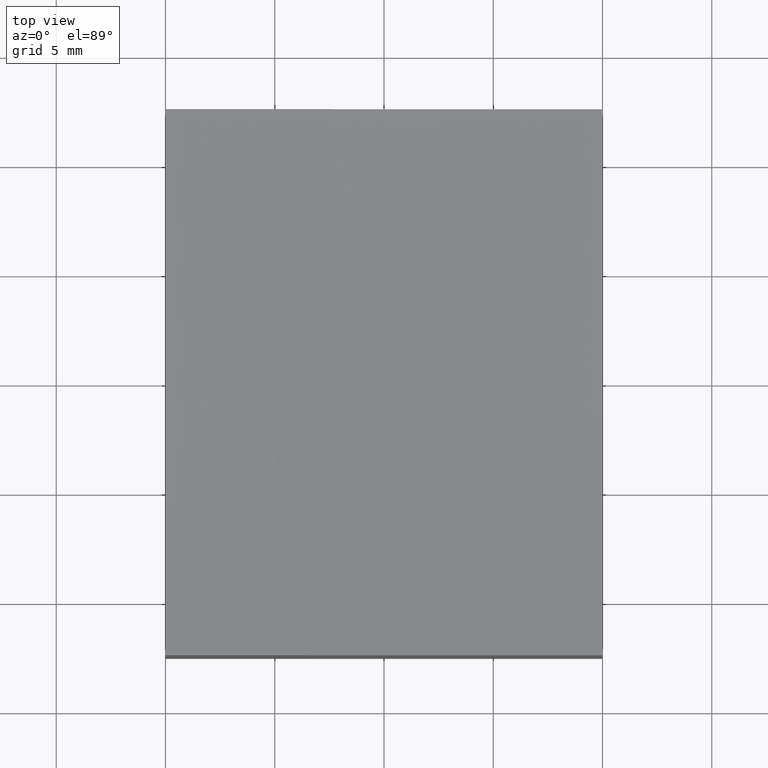
[diagram: clean part render]
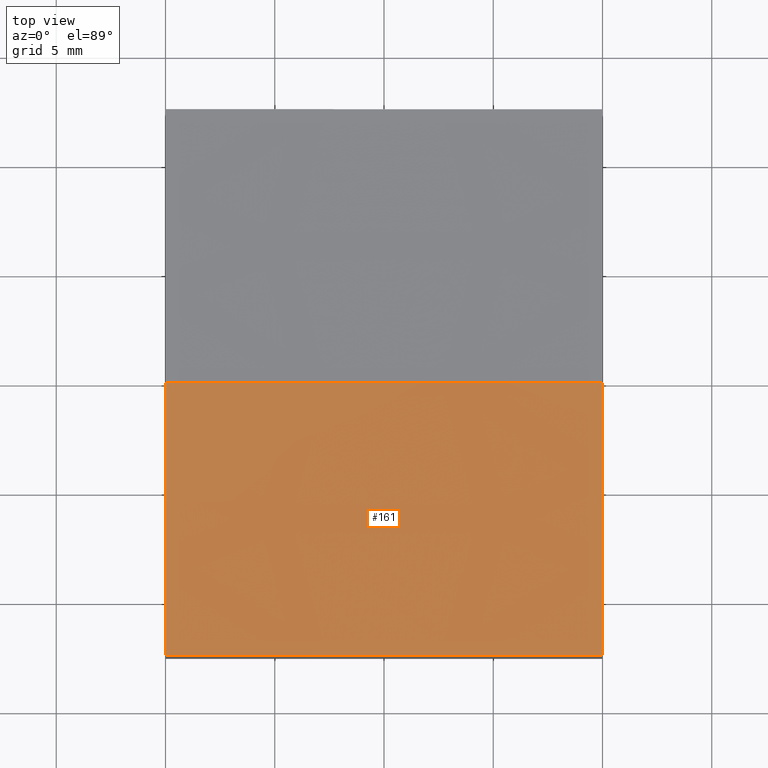
[diagram: same view with one face highlighted and labeled with its STEP entity id]
A machine part, top view. The second image highlights one B-rep face of the part: STEP entity #161.
In plain terms, the highlighted spherical surface has radius 500 mm.
Its self-contained STEP definition (entity closure, byte-faithful):
#6 = DIRECTION ( 'NONE',  ( 0.000000000000000000, 0.000000000000000000, 1.000000000000000000 ) ) ;
#10 = CARTESIAN_POINT ( 'NONE',  ( -9.999999999999998224, -12.50000000000000355, -0.2181386928964412775 ) ) ;
#12 = EDGE_CURVE ( 'NONE', #236, #62, #24, .T. ) ;
#16 = DIRECTION ( 'NONE',  ( -1.734723475976807094E-16, 1.000000000000000000, 0.000000000000000000 ) ) ;
#23 = CARTESIAN_POINT ( 'NONE',  ( 10.00000000000000178, -12.50000000000000000, -0.8187171365233725240 ) ) ;
#24 = CIRCLE ( 'NONE', #27, 499.8437255783051114 ) ;
#25 = DIRECTION ( 'NONE',  ( -1.000000000000000000, 0.000000000000000000, 0.000000000000000000 ) ) ;
#27 = AXIS2_PLACEMENT_3D ( 'NONE', #111, #16, #90 ) ;
#31 = DIRECTION ( 'NONE',  ( 0.000000000000000000, 0.000000000000000000, -1.000000000000000000 ) ) ;
#39 = AXIS2_PLACEMENT_3D ( 'NONE', #116, #25, #6 ) ;
#41 = EDGE_LOOP ( 'NONE', ( #150, #132, #108, #64 ) ) ;
#56 = AXIS2_PLACEMENT_3D ( 'NONE', #101, #179, #31 ) ;
#62 = VERTEX_POINT ( 'NONE', #10 ) ;
#64 = ORIENTED_EDGE ( 'NONE', *, *, #262, .F. ) ;
#77 = DIRECTION ( 'NONE',  ( -1.000000000000000000, 0.000000000000000000, 1.110223024625156787E-16 ) ) ;
#90 = DIRECTION ( 'NONE',  ( -1.000000000000000000, -1.735265831305355409E-16, 0.000000000000000000 ) ) ;
#96 = EDGE_CURVE ( 'NONE', #107, #185, #225, .T. ) ;
#100 = FACE_OUTER_BOUND ( 'NONE', #41, .T. ) ;
#101 = CARTESIAN_POINT ( 'NONE',  ( -10.00000000000000000, 0.000000000000000000, 499.0000000000000000 ) ) ;
#107 = VERTEX_POINT ( 'NONE', #162 ) ;
#108 = ORIENTED_EDGE ( 'NONE', *, *, #12, .F. ) ;
#111 = CARTESIAN_POINT ( 'NONE',  ( 15.00000000000006573, -12.49999999999999822, 499.0000000000000000 ) ) ;
#116 = CARTESIAN_POINT ( 'NONE',  ( 10.00000000000000178, 0.000000000000000000, 499.0000000000000000 ) ) ;
#119 = DIRECTION ( 'NONE',  ( 0.000000000000000000, -1.000000000000000000, 0.000000000000000000 ) ) ;
#123 = CARTESIAN_POINT ( 'NONE',  ( 15.00000000000006395, 0.000000000000000000, 499.0000000000000000 ) ) ;
#132 = ORIENTED_EDGE ( 'NONE', *, *, #199, .F. ) ;
#136 = DIRECTION ( 'NONE',  ( 0.000000000000000000, 0.000000000000000000, -1.000000000000000000 ) ) ;
#141 = CARTESIAN_POINT ( 'NONE',  ( 15.00000000000006395, 0.000000000000000000, 499.0000000000000000 ) ) ;
#150 = ORIENTED_EDGE ( 'NONE', *, *, #96, .F. ) ;
#160 = DIRECTION ( 'NONE',  ( 0.000000000000000000, 1.000000000000000000, -0.000000000000000000 ) ) ;
#161 = ADVANCED_FACE ( 'NONE', ( #100 ), #264, .F. ) ;
#162 = CARTESIAN_POINT ( 'NONE',  ( -10.00000000000000000, 0.000000000000000000, -0.3746088859544194349 ) ) ;
#167 = CIRCLE ( 'NONE', #39, 499.9749993749687178 ) ;
#179 = DIRECTION ( 'NONE',  ( 1.000000000000000000, 0.000000000000000000, 0.000000000000000000 ) ) ;
#185 = VERTEX_POINT ( 'NONE', #227 ) ;
#192 = CIRCLE ( 'NONE', #56, 499.3746088859544443 ) ;
#197 = AXIS2_PLACEMENT_3D ( 'NONE', #141, #160, #77 ) ;
#199 = EDGE_CURVE ( 'NONE', #62, #107, #192, .T. ) ;
#225 = CIRCLE ( 'NONE', #243, 499.9999999999999432 ) ;
#227 = CARTESIAN_POINT ( 'NONE',  ( 10.00000000000000178, 0.000000000000000000, -0.9749993749686991507 ) ) ;
#236 = VERTEX_POINT ( 'NONE', #23 ) ;
#243 = AXIS2_PLACEMENT_3D ( 'NONE', #123, #119, #136 ) ;
#262 = EDGE_CURVE ( 'NONE', #185, #236, #167, .T. ) ;
#264 = SPHERICAL_SURFACE ( 'NONE', #197, 499.9999999999999432 ) ;